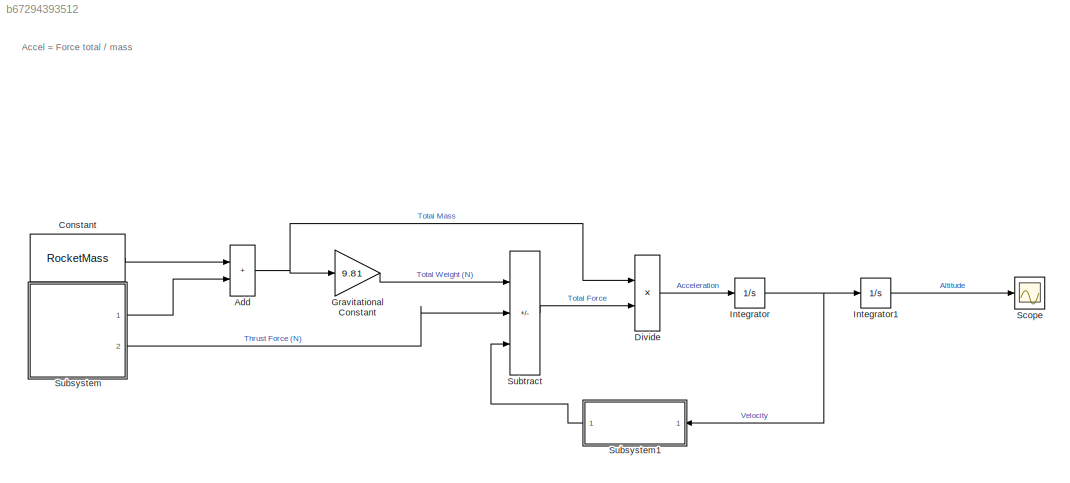
MODEL slx_b67294393512
KIND model
CONFIG AbsTol = auto
CONFIG EnableMultiTasking = off
CONFIG FixedStep = auto
CONFIG MaxStep = auto
CONFIG MinStep = auto
CONFIG RelTol = 1e-3
CONFIG SampleTimeConstraint = Unconstrained
CONFIG Solver = VariableStepAuto
CONFIG SolverName = VariableStepAuto
CONFIG StartTime = 0.0
CONFIG StopTime = 15
BLOCK [Sum] Add
  IconShape = rectangular
  Ports = [2, 1]
BLOCK [Constant] Constant
  Value = RocketMass
BLOCK [Product] Divide
  Inputs = /*
  Ports = [2, 1]
BLOCK [Gain] Gravitational Constant
  Gain = 9.81
BLOCK [Integrator] Integrator
  LimitOutput = on
  Ports = [1, 1]
BLOCK [Integrator] Integrator1
  LimitOutput = on
  LowerSaturationLimit = 0
  Ports = [1, 1]
BLOCK [Scope] Scope
  Floating = off
  NumInputPorts = 1
  Ports = [1]
  ScopeSpecificationString = Simulink.scopes.TimeScopeBlockCfg('CurrentConfiguration', extmgr.ConfigurationSet(extmgr.Configuration('Core','General UI',true),extmgr.Configuration('Core','Source UI',true),extmgr.Configuration('Sources','WiredSimulink',true),extmgr.Configuration('Visuals','Time Domain',true,'SerializedDisplays',{struct('MinYLimReal','-15.62996','MaxYLimReal','140.66966','YLabelReal','','MinYLimMag','0.00000','M...<+1445ch>
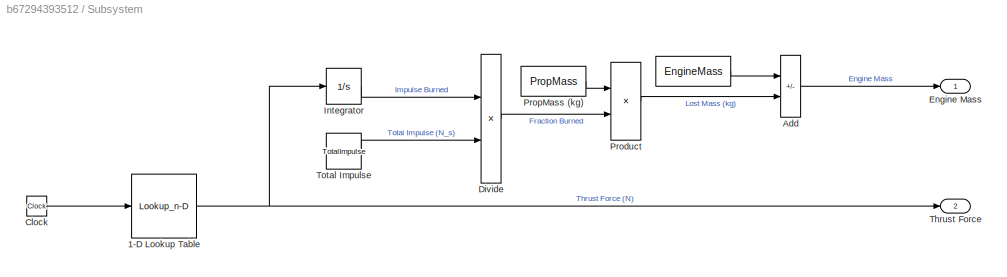
BLOCK [SubSystem] Subsystem
  Ports = [0, 2]
  RequestExecContextInheritance = off
BLOCK [Constant] Subsystem/ 
  Value = EngineMass
BLOCK [Lookup_n-D] Subsystem/1-D Lookup Table
  BreakpointsForDimension1 = ThrustTime
  InternalRulePriority = Speed
  NumberOfTableDimensions = 1
  Ports = [1, 1]
  RndMeth = Simplest
  Table = EngineThrust
BLOCK [Sum] Subsystem/Add
  IconShape = rectangular
  Inputs = +-
  Ports = [2, 1]
BLOCK [Clock] Subsystem/Clock
  Decimation = 15
BLOCK [Product] Subsystem/Divide
  Inputs = */
  Ports = [2, 1]
BLOCK [Outport] Subsystem/Engine Mass
BLOCK [Integrator] Subsystem/Integrator
  Ports = [1, 1]
BLOCK [Product] Subsystem/Product
  Ports = [2, 1]
BLOCK [Constant] Subsystem/PropMass (kg)
  Value = PropMass
BLOCK [Outport] Subsystem/Thrust Force
  Port = 2
BLOCK [Constant] Subsystem/Total Impulse
  Value = TotalImpulse
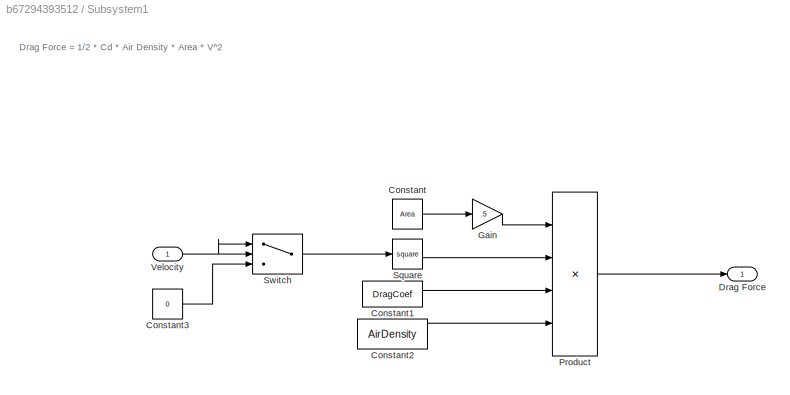
BLOCK [SubSystem] Subsystem1
  Ports = [1, 1]
  RequestExecContextInheritance = off
BLOCK [Constant] Subsystem1/Constant
  Value = Area
BLOCK [Constant] Subsystem1/Constant1
  Value = DragCoef
BLOCK [Constant] Subsystem1/Constant2
  Value = AirDensity
BLOCK [Constant] Subsystem1/Constant3
  Value = 0
BLOCK [Outport] Subsystem1/Drag Force
BLOCK [Gain] Subsystem1/Gain
  Gain = .5
BLOCK [Product] Subsystem1/Product
  Inputs = 4
  Ports = [4, 1]
BLOCK [Math] Subsystem1/Square
  Operator = square
  Ports = [1, 1]
BLOCK [Switch] Subsystem1/Switch
  InputSameDT = off
  SaturateOnIntegerOverflow = off
BLOCK [Inport] Subsystem1/Velocity
BLOCK [Sum] Subtract
  IconShape = rectangular
  Inputs = -+-
  Ports = [3, 1]
ANNOTATION (root): Accel = Force total / mass
ANNOTATION Subsystem1: Drag Force = 1/2 * Cd * Air Density * Area * V^2
NET Add:1 -> Divide:1, Gravitational Constant:1
LINE Constant:1 -> Add:1
LINE Divide:1 -> Integrator:1
LINE Gravitational Constant:1 -> Subtract:1
LINE Integrator1:1 -> Scope:1
NET Integrator:1 -> Integrator1:1, Subsystem1:1
LINE Subsystem/ :1 -> Subsystem/Add:1
NET Subsystem/1-D Lookup Table:1 -> Subsystem/Integrator:1, Subsystem/Thrust Force:1
LINE Subsystem/Add:1 -> Subsystem/Engine Mass:1
LINE Subsystem/Clock:1 -> Subsystem/1-D Lookup Table:1
LINE Subsystem/Divide:1 -> Subsystem/Product:2
LINE Subsystem/Integrator:1 -> Subsystem/Divide:1
LINE Subsystem/Product:1 -> Subsystem/Add:2
LINE Subsystem/PropMass (kg):1 -> Subsystem/Product:1
LINE Subsystem/Total Impulse:1 -> Subsystem/Divide:2
LINE Subsystem1/Constant1:1 -> Subsystem1/Product:3
LINE Subsystem1/Constant2:1 -> Subsystem1/Product:4
LINE Subsystem1/Constant3:1 -> Subsystem1/Switch:3
LINE Subsystem1/Constant:1 -> Subsystem1/Gain:1
LINE Subsystem1/Gain:1 -> Subsystem1/Product:1
LINE Subsystem1/Product:1 -> Subsystem1/Drag Force:1
LINE Subsystem1/Square:1 -> Subsystem1/Product:2
LINE Subsystem1/Switch:1 -> Subsystem1/Square:1
NET Subsystem1/Velocity:1 -> Subsystem1/Switch:1, Subsystem1/Switch:2
LINE Subsystem1:1 -> Subtract:3
LINE Subsystem:1 -> Add:2
LINE Subsystem:2 -> Subtract:2
LINE Subtract:1 -> Divide:2
note: NET lines group one-source signal fan-out (src -> all destinations, sorted); 1:1 wires keep LINE
